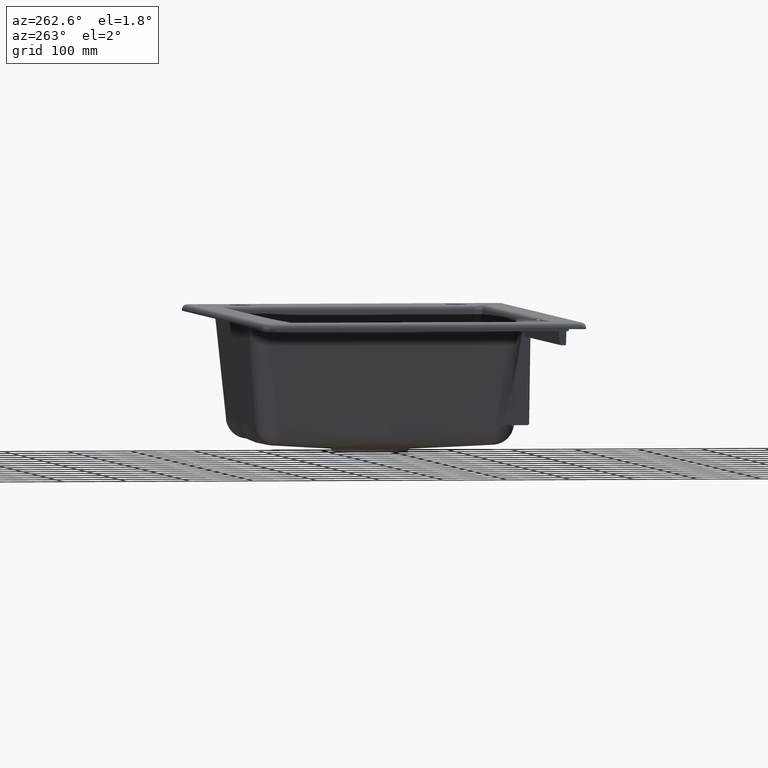
[diagram: clean part render]
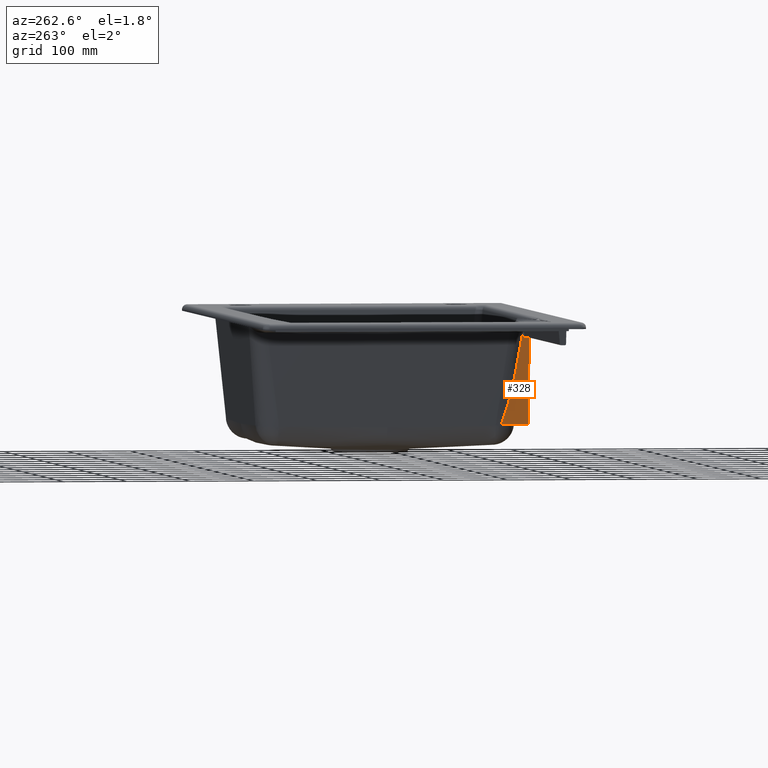
[diagram: same view with one face highlighted and labeled with its STEP entity id]
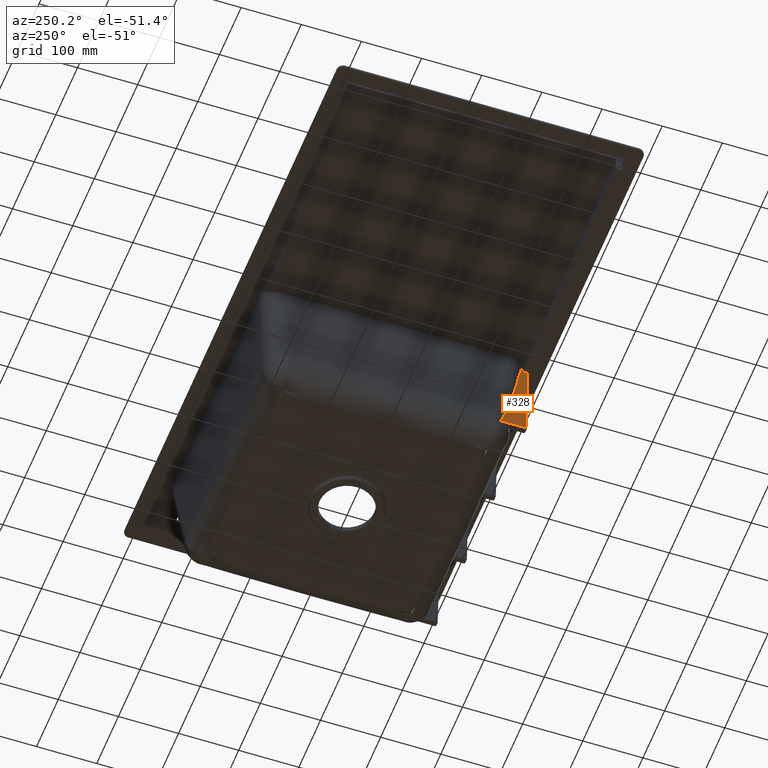
[diagram: same view with one face highlighted and labeled with its STEP entity id]
A machine part, auxiliary view. The second image highlights one B-rep face of the part: STEP entity #328.
A second angle (auxiliary view) of the same face is appended — the face is thin or edge-on in the first view.
In plain terms, the highlighted planar face has unit normal (0.9998, -0, 0.0175).
Its self-contained STEP definition (entity closure, byte-faithful):
#328=ADVANCED_FACE('',(#570),#520,.F.);
#520=PLANE('',#3336);
#570=FACE_OUTER_BOUND('',#767,.T.);
#767=EDGE_LOOP('',(#1407,#1408,#1409,#1410,#1411,#1412,#1413));
#1009=B_SPLINE_CURVE_WITH_KNOTS('',1,(#4545,#4546),.UNSPECIFIED.,.F.,.F.,
(2,2),(0.,1.),.UNSPECIFIED.);
#1011=B_SPLINE_CURVE_WITH_KNOTS('',3,(#4559,#4560,#4561,#4562,#4563,#4564,
#4565,#4566,#4567,#4568,#4569,#4570),.UNSPECIFIED.,.F.,.F.,(4,2,2,2,2,4),
(0.,0.0828182665797716,0.312078480585141,0.541373307511163,0.77068727276323,
1.),.UNSPECIFIED.);
#1034=B_SPLINE_CURVE_WITH_KNOTS('',3,(#4821,#4822,#4823,#4824,#4825,#4826,
#4827,#4828,#4829,#4830,#4831,#4832),.UNSPECIFIED.,.F.,.F.,(4,2,2,2,2,4),
(0.,0.216638313865649,0.433275701542331,0.64992781507975,0.866611638271651,
1.),.UNSPECIFIED.);
#1035=B_SPLINE_CURVE_WITH_KNOTS('',3,(#4834,#4835,#4836,#4837,#4838,#4839,
#4840,#4841,#4842,#4843),.UNSPECIFIED.,.F.,.F.,(4,2,2,2,4),(0.,0.0299111850747213,
0.149555925373606,0.628134886569147,1.),.UNSPECIFIED.);
#1036=B_SPLINE_CURVE_WITH_KNOTS('',1,(#4845,#4846),.UNSPECIFIED.,.F.,.F.,
(2,2),(0.,1.),.UNSPECIFIED.);
#1037=B_SPLINE_CURVE_WITH_KNOTS('',3,(#4847,#4848,#4849,#4850,#4851,#4852),
 .UNSPECIFIED.,.F.,.F.,(4,2,4),(0.,0.740714710990089,1.),.UNSPECIFIED.);
#1038=B_SPLINE_CURVE_WITH_KNOTS('',3,(#4854,#4855,#4856,#4857,#4858,#4859,
#4860,#4861,#4862,#4863),.UNSPECIFIED.,.F.,.F.,(4,2,2,2,4),(0.,0.5,0.75,
0.875,1.),.UNSPECIFIED.);
#1407=ORIENTED_EDGE('',*,*,#2656,.T.);
#1408=ORIENTED_EDGE('',*,*,#2698,.T.);
#1409=ORIENTED_EDGE('',*,*,#2699,.T.);
#1410=ORIENTED_EDGE('',*,*,#2700,.T.);
#1411=ORIENTED_EDGE('',*,*,#2658,.T.);
#1412=ORIENTED_EDGE('',*,*,#2701,.T.);
#1413=ORIENTED_EDGE('',*,*,#2702,.T.);
#2344=VERTEX_POINT('',#4544);
#2345=VERTEX_POINT('',#4547);
#2346=VERTEX_POINT('',#4571);
#2347=VERTEX_POINT('',#4572);
#2375=VERTEX_POINT('',#4833);
#2376=VERTEX_POINT('',#4844);
#2377=VERTEX_POINT('',#4853);
#2656=EDGE_CURVE('',#2345,#2344,#1009,.T.);
#2658=EDGE_CURVE('',#2346,#2347,#1011,.T.);
#2698=EDGE_CURVE('',#2344,#2375,#1034,.T.);
#2699=EDGE_CURVE('',#2375,#2376,#1035,.T.);
#2700=EDGE_CURVE('',#2376,#2346,#1036,.T.);
#2701=EDGE_CURVE('',#2347,#2377,#1037,.T.);
#2702=EDGE_CURVE('',#2377,#2345,#1038,.T.);
#3336=AXIS2_PLACEMENT_3D('',#4864,#3606,#3607);
#3606=DIRECTION('',(0.999847695156391,-6.57289817111287E-15,0.0174524064372826));
#3607=DIRECTION('',(-0.0174524064372826,0.,0.999847695156391));
#4544=CARTESIAN_POINT('',(-210.3236663517,-221.022225556091,-172.650839210205));
#4545=CARTESIAN_POINT('',(-210.3236663517,-179.922297882184,-172.650839210205));
#4546=CARTESIAN_POINT('',(-210.3236663517,-221.022225556091,-172.650839210205));
#4547=CARTESIAN_POINT('',(-210.323702248072,-179.922099416885,-172.650752388814));
#4559=CARTESIAN_POINT('',(-212.674614758528,-217.999539043381,-37.9650951871233));
#4560=CARTESIAN_POINT('',(-212.674614758528,-217.835791760709,-37.9650951871233));
#4561=CARTESIAN_POINT('',(-212.674790930954,-217.671736549772,-37.9550022756427));
#4562=CARTESIAN_POINT('',(-212.676099191817,-217.064901612527,-37.8800520609847));
#4563=CARTESIAN_POINT('',(-212.678409361957,-216.623928189841,-37.7477025023017));
#4564=CARTESIAN_POINT('',(-212.685351842239,-215.821668847701,-37.3499680733331));
#4565=CARTESIAN_POINT('',(-212.690080269169,-215.449326680446,-37.0790766759455));
#4566=CARTESIAN_POINT('',(-212.701267791492,-214.823924570533,-36.4381439513113));
#4567=CARTESIAN_POINT('',(-212.707881352085,-214.562246463147,-36.0592533186927));
#4568=CARTESIAN_POINT('',(-212.722051842349,-214.184292813019,-35.2474264751756));
#4569=CARTESIAN_POINT('',(-212.729804198463,-214.062803174168,-34.8032942908672));
#4570=CARTESIAN_POINT('',(-212.737581710101,-214.018855055385,-34.3577209475034));
#4571=CARTESIAN_POINT('',(-212.674614758528,-217.999539043381,-37.9650951871233));
#4572=CARTESIAN_POINT('',(-212.737581710101,-214.018855055385,-34.3577209475034));
#4821=CARTESIAN_POINT('',(-210.3236663517,-221.022225556091,-172.650839210205));
#4822=CARTESIAN_POINT('',(-210.3236663517,-221.134136660699,-172.650839210205));
#4823=CARTESIAN_POINT('',(-210.324003576454,-221.247591074939,-172.631519617003));
#4824=CARTESIAN_POINT('',(-210.325296588591,-221.458795348681,-172.557443001262));
#4825=CARTESIAN_POINT('',(-210.326270200689,-221.559457684976,-172.50166480153));
#4826=CARTESIAN_POINT('',(-210.328710423527,-221.734241895379,-172.361864528804));
#4827=CARTESIAN_POINT('',(-210.33021071142,-221.810772103852,-172.275913092984));
#4828=CARTESIAN_POINT('',(-210.333523325803,-221.929444101053,-172.086133542042));
#4829=CARTESIAN_POINT('',(-210.335381373858,-221.973217415975,-171.979686040267));
#4830=CARTESIAN_POINT('',(-210.338470818757,-222.013069622756,-171.802691860548));
#4831=CARTESIAN_POINT('',(-210.339688890331,-222.021272971639,-171.732908586821));
#4832=CARTESIAN_POINT('',(-210.340902030895,-222.022146568116,-171.663407810431));
#4833=CARTESIAN_POINT('',(-210.340902030895,-222.022146568116,-171.663407810431));
#4834=CARTESIAN_POINT('',(-210.340902030895,-222.022146568116,-171.663407810431));
#4835=CARTESIAN_POINT('',(-210.364170068665,-222.038902149809,-170.330382819413));
#4836=CARTESIAN_POINT('',(-210.387438106434,-222.055657731502,-168.997357828395));
#4837=CARTESIAN_POINT('',(-210.503778295279,-222.139435639967,-162.332232873306));
#4838=CARTESIAN_POINT('',(-210.596850446356,-222.206457966739,-157.000132909234));
#4839=CARTESIAN_POINT('',(-211.062211201739,-222.5415696006,-130.339633088876));
#4840=CARTESIAN_POINT('',(-211.434499806046,-222.809658907688,-109.01123323259));
#4841=CARTESIAN_POINT('',(-212.096063859744,-223.286058793957,-71.11025397991));
#4842=CARTESIAN_POINT('',(-212.385339309136,-223.494369373137,-54.5376745835166));
#4843=CARTESIAN_POINT('',(-212.674614758528,-223.702679952317,-37.9650951871233));
#4844=CARTESIAN_POINT('',(-212.674614758528,-223.702679952317,-37.9650951871233));
#4845=CARTESIAN_POINT('',(-212.674614758528,-223.702679952317,-37.9650951871233));
#4846=CARTESIAN_POINT('',(-212.674614758528,-217.999539043381,-37.9650951871233));
#4847=CARTESIAN_POINT('',(-212.737581710101,-214.018855055385,-34.3577209475034));
#4848=CARTESIAN_POINT('',(-212.760739249033,-213.887999542856,-33.0310264306649));
#4849=CARTESIAN_POINT('',(-212.783896787964,-213.757144030327,-31.7043319138265));
#4850=CARTESIAN_POINT('',(-212.815160564135,-213.58048288051,-29.9132313765291));
#4851=CARTESIAN_POINT('',(-212.823266801376,-213.534677243224,-29.4488253560702));
#4852=CARTESIAN_POINT('',(-212.831373038616,-213.488871605937,-28.9844193356112));
#4853=CARTESIAN_POINT('',(-212.83135897494,-213.488877524234,-28.9844200029499));
#4854=CARTESIAN_POINT('',(-212.831383791596,-213.484860741661,-28.9838032977812));
#4855=CARTESIAN_POINT('',(-212.406203707014,-209.742413792766,-53.3423540296612));
#4856=CARTESIAN_POINT('',(-211.982459614542,-205.440892209979,-77.6186368286315));
#4857=CARTESIAN_POINT('',(-211.351999945678,-197.619979472373,-113.737647067593));
#4858=CARTESIAN_POINT('',(-211.142490813646,-194.786723808654,-125.740417203014));
#4859=CARTESIAN_POINT('',(-210.831415506047,-189.947504989801,-143.561909639603));
#4860=CARTESIAN_POINT('',(-210.728258779348,-188.236674079056,-149.471754554175));
#4861=CARTESIAN_POINT('',(-210.523892975516,-184.459155909304,-161.179863614324));
#4862=CARTESIAN_POINT('',(-210.422541729332,-182.418444452399,-166.986272619445));
#4863=CARTESIAN_POINT('',(-210.323724105821,-179.914813111276,-172.647530478842));
#4864=CARTESIAN_POINT('',(-210.16307468629,-116.587812958405,-181.851129559749));